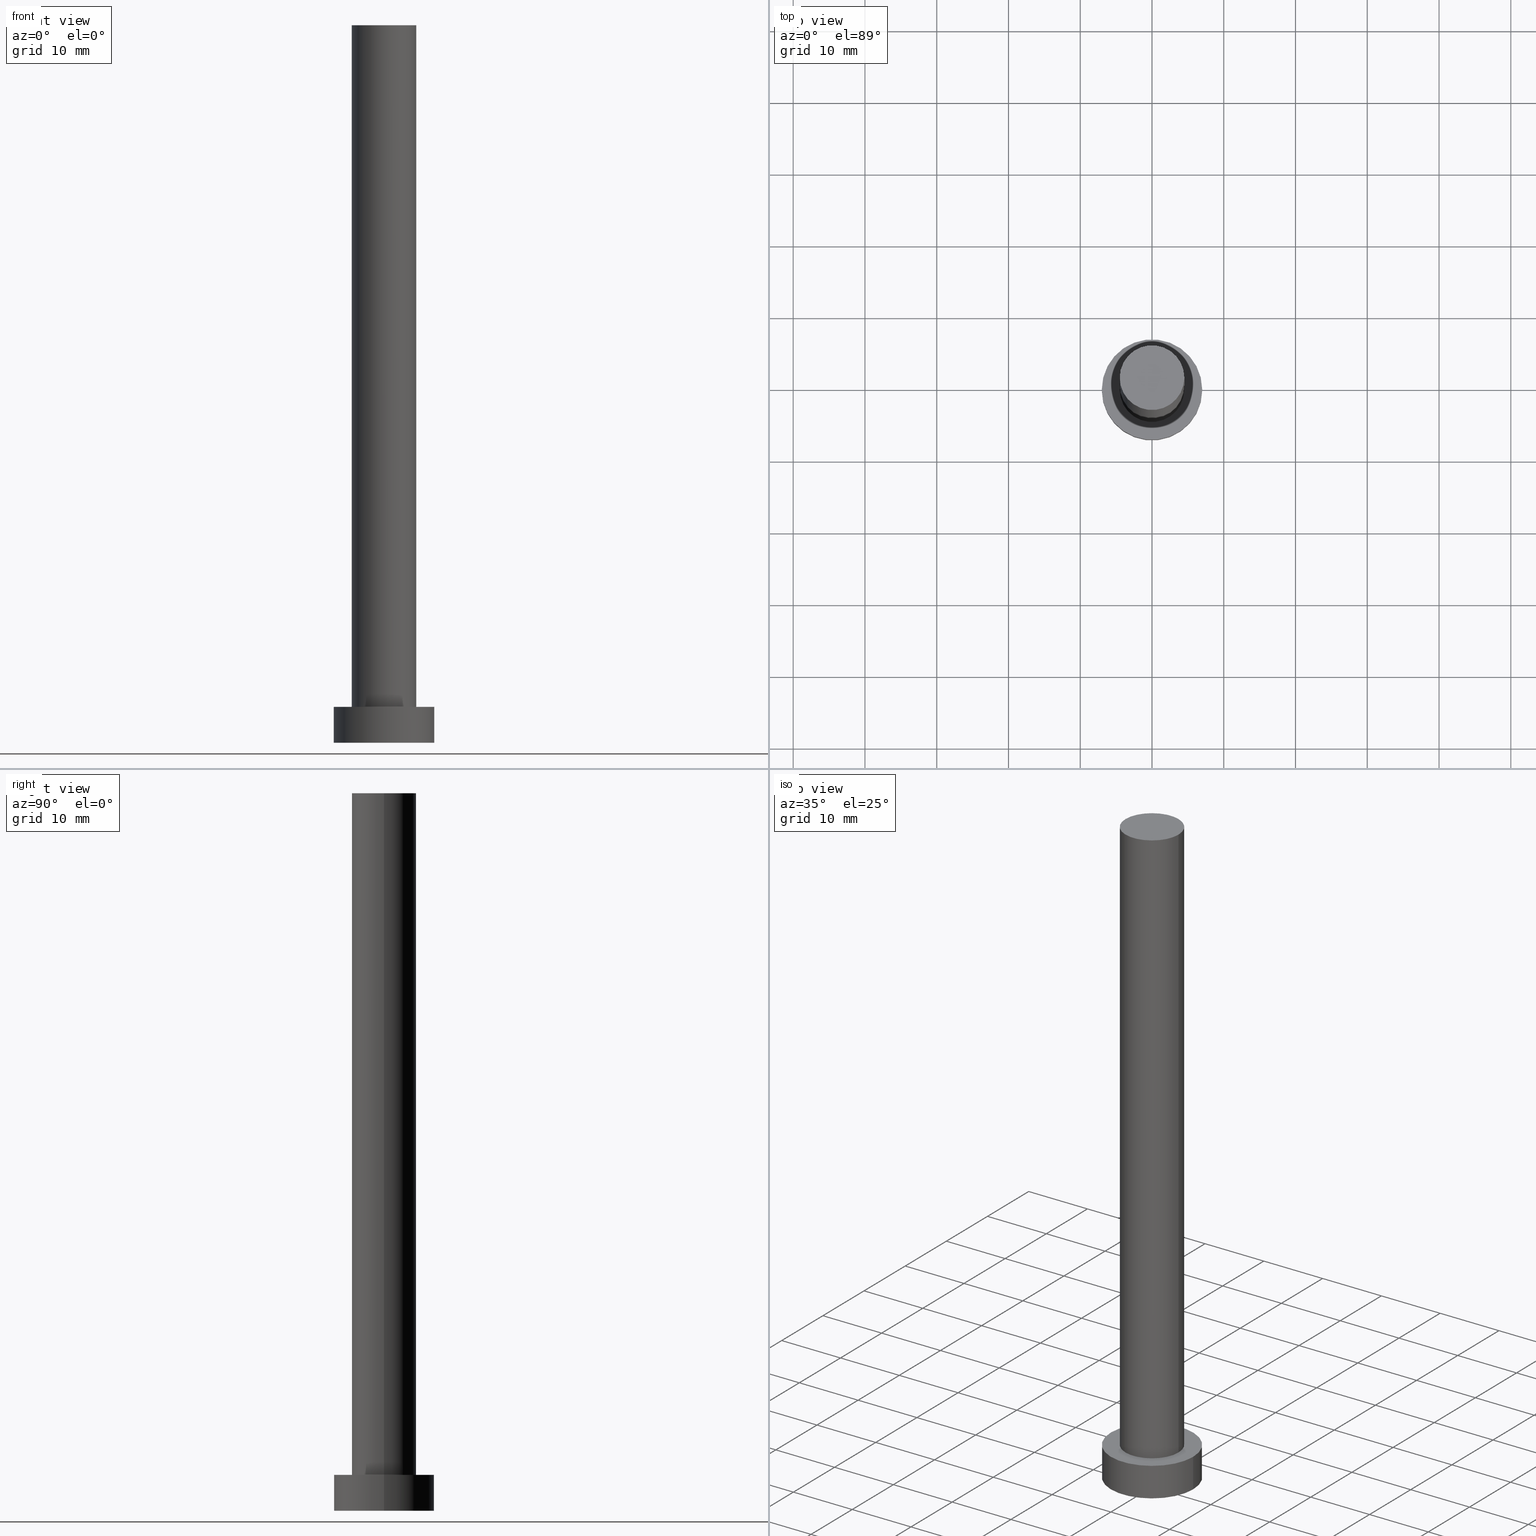
[diagram: canonical four-view strip — front | top / right | iso, engineering-drawing reading convention]
A machine part, canonical four-view strip (front | top / right | iso — engineering-drawing reading convention). The complete STEP part file that produces these views, byte-faithful:
ISO-10303-21;
HEADER;
FILE_DESCRIPTION (( 'STEP AP203' ),
    '1' );
FILE_NAME ('ac9d.STEP',
    '2023-02-13T10:51:31',
    ( '' ),
    ( '' ),
    'SwSTEP 2.0',
    'SolidWorks 2019',
    '' );
FILE_SCHEMA (( 'CONFIG_CONTROL_DESIGN' ));
ENDSEC;

DATA;
#1 = APPROVAL_STATUS ( 'not_yet_approved' ) ;
#2 = ADVANCED_FACE ( 'NONE', ( #103 ), #195, .F. ) ;
#3 = PRODUCT ( 'ac9d', 'ac9d', '', ( #224 ) ) ;
#4 = CARTESIAN_POINT ( 'NONE',  ( 4.500000000000000888, 5.510910596163089556E-16, 100.0000000000000000 ) ) ;
#5 = VECTOR ( 'NONE', #66, 1000.000000000000000 ) ;
#6 = APPROVAL_ROLE ( '' ) ;
#7 = DIRECTION ( 'NONE',  ( -1.000000000000000000, 0.000000000000000000, 0.000000000000000000 ) ) ;
#8 = APPROVAL_STATUS ( 'not_yet_approved' ) ;
#9 = ORIENTED_EDGE ( 'NONE', *, *, #163, .F. ) ;
#10 = ORIENTED_EDGE ( 'NONE', *, *, #168, .T. ) ;
#11 = EDGE_LOOP ( 'NONE', ( #41, #9, #10, #31 ) ) ;
#12 = CARTESIAN_POINT ( 'NONE',  ( 0.000000000000000000, 0.000000000000000000, 5.000000000000000000 ) ) ;
#13 = DIRECTION ( 'NONE',  ( 0.000000000000000000, 0.000000000000000000, 1.000000000000000000 ) ) ;
#14 = DIRECTION ( 'NONE',  ( 1.000000000000000000, 0.000000000000000000, 0.000000000000000000 ) ) ;
#15 = DIRECTION ( 'NONE',  ( 0.000000000000000000, 0.000000000000000000, 1.000000000000000000 ) ) ;
#16 = CARTESIAN_POINT ( 'NONE',  ( -7.000000000000000000, 0.000000000000000000, 5.000000000000000000 ) ) ;
#17 = LINE ( 'NONE', #128, #5 ) ;
#18 = PLANE ( 'NONE',  #182 ) ;
#19 = APPLICATION_PROTOCOL_DEFINITION ( 'international standard', 'config_control_design', 1994, #246 ) ;
#20 = LOCAL_TIME ( 11, 51, 31.00000000000000000, #25 ) ;
#21 = APPROVAL ( #212, 'NEUR�EN�' ) ;
#22 = AXIS2_PLACEMENT_3D ( 'NONE', #108, #216, #27 ) ;
#23 = APPROVAL_DATE_TIME ( #161, #73 ) ;
#24 = DATE_TIME_ROLE ( 'creation_date' ) ;
#25 = COORDINATED_UNIVERSAL_TIME_OFFSET ( 1, 0, .AHEAD. ) ;
#26 = ORIENTED_EDGE ( 'NONE', *, *, #229, .T. ) ;
#27 = DIRECTION ( 'NONE',  ( 1.000000000000000000, 0.000000000000000000, 0.000000000000000000 ) ) ;
#28 = APPROVAL_PERSON_ORGANIZATION ( #187, #21, #240 ) ;
#29 = ORIENTED_EDGE ( 'NONE', *, *, #136, .T. ) ;
#30 = CIRCLE ( 'NONE', #252, 7.000000000000000000 ) ;
#31 = ORIENTED_EDGE ( 'NONE', *, *, #225, .T. ) ;
#32 = DIRECTION ( 'NONE',  ( 0.000000000000000000, 0.000000000000000000, 1.000000000000000000 ) ) ;
#33 = DIRECTION ( 'NONE',  ( 0.000000000000000000, 0.000000000000000000, 1.000000000000000000 ) ) ;
#34 = CC_DESIGN_PERSON_AND_ORGANIZATION_ASSIGNMENT ( #143, #79, ( #222 ) ) ;
#35 = APPROVAL_ROLE ( '' ) ;
#36 = PERSON_AND_ORGANIZATION_ROLE ( 'creator' ) ;
#37 = ADVANCED_FACE ( 'NONE', ( #178 ), #131, .T. ) ;
#38 = AXIS2_PLACEMENT_3D ( 'NONE', #77, #184, #7 ) ;
#39 = CC_DESIGN_SECURITY_CLASSIFICATION ( #222, ( #157 ) ) ;
#40 = CARTESIAN_POINT ( 'NONE',  ( 0.000000000000000000, 0.000000000000000000, 5.000000000000000000 ) ) ;
#41 = ORIENTED_EDGE ( 'NONE', *, *, #136, .F. ) ;
#42 = CALENDAR_DATE ( 2023, 13, 2 ) ;
#43 = PRODUCT_DEFINITION ( 'NEZN�M�', '', #157, #87 ) ;
#44 = CLOSED_SHELL ( 'NONE', ( #102, #37, #109, #76, #2, #245, #122 ) ) ;
#45 = VERTEX_POINT ( 'NONE', #91 ) ;
#46 = DIRECTION ( 'NONE',  ( 1.000000000000000000, 0.000000000000000000, -0.000000000000000000 ) ) ;
#47 = EDGE_LOOP ( 'NONE', ( #130, #88, #193, #213 ) ) ;
#48 = CARTESIAN_POINT ( 'NONE',  ( 0.000000000000000000, 0.000000000000000000, 5.000000000000000000 ) ) ;
#49 = DIRECTION ( 'NONE',  ( 0.000000000000000000, 0.000000000000000000, 1.000000000000000000 ) ) ;
#50 = CARTESIAN_POINT ( 'NONE',  ( 0.000000000000000000, 0.000000000000000000, 100.0000000000000000 ) ) ;
#51 = CC_DESIGN_APPROVAL ( #73, ( #157 ) ) ;
#52 = CIRCLE ( 'NONE', #180, 7.000000000000000000 ) ;
#53 = CARTESIAN_POINT ( 'NONE',  ( 0.000000000000000000, 0.000000000000000000, 5.000000000000000000 ) ) ;
#54 = DATE_AND_TIME ( #69, #210 ) ;
#55 =( NAMED_UNIT ( * ) PLANE_ANGLE_UNIT ( ) SI_UNIT ( $, .RADIAN. ) );
#56 = EDGE_CURVE ( 'NONE', #188, #45, #111, .T. ) ;
#57 = DATE_TIME_ROLE ( 'classification_date' ) ;
#58 = EDGE_CURVE ( 'NONE', #81, #171, #71, .T. ) ;
#59 = AXIS2_PLACEMENT_3D ( 'NONE', #175, #13, #132 ) ;
#60 = ADVANCED_BREP_SHAPE_REPRESENTATION ( 'ac9d', ( #89, #173 ), #235 ) ;
#61 = CALENDAR_DATE ( 2023, 13, 2 ) ;
#62 = CC_DESIGN_PERSON_AND_ORGANIZATION_ASSIGNMENT ( #146, #96, ( #157 ) ) ;
#63 = CARTESIAN_POINT ( 'NONE',  ( 0.000000000000000000, 0.000000000000000000, 0.000000000000000000 ) ) ;
#64 = ORIENTED_EDGE ( 'NONE', *, *, #177, .T. ) ;
#65 = DIRECTION ( 'NONE',  ( 1.000000000000000000, 0.000000000000000000, 0.000000000000000000 ) ) ;
#66 = DIRECTION ( 'NONE',  ( -0.000000000000000000, -0.000000000000000000, -1.000000000000000000 ) ) ;
#67 = AXIS2_PLACEMENT_3D ( 'NONE', #48, #218, #194 ) ;
#68 = DIRECTION ( 'NONE',  ( 1.000000000000000000, 0.000000000000000000, 0.000000000000000000 ) ) ;
#69 = CALENDAR_DATE ( 2023, 13, 2 ) ;
#70 =( NAMED_UNIT ( * ) SI_UNIT ( $, .STERADIAN. ) SOLID_ANGLE_UNIT ( ) );
#71 = CIRCLE ( 'NONE', #144, 4.500000000000000888 ) ;
#72 = CARTESIAN_POINT ( 'NONE',  ( 0.000000000000000000, 0.000000000000000000, 0.000000000000000000 ) ) ;
#73 = APPROVAL ( #8, 'NEUR�EN�' ) ;
#74 = APPLICATION_CONTEXT ( 'configuration controlled 3d designs of mechanical parts and assemblies' ) ;
#75 = AXIS2_PLACEMENT_3D ( 'NONE', #12, #135, #152 ) ;
#76 = ADVANCED_FACE ( 'NONE', ( #249, #181 ), #18, .T. ) ;
#77 = CARTESIAN_POINT ( 'NONE',  ( 0.000000000000000000, 0.000000000000000000, 100.0000000000000000 ) ) ;
#78 = COORDINATED_UNIVERSAL_TIME_OFFSET ( 1, 0, .AHEAD. ) ;
#79 = PERSON_AND_ORGANIZATION_ROLE ( 'classification_officer' ) ;
#80 = VECTOR ( 'NONE', #142, 1000.000000000000000 ) ;
#81 = VERTEX_POINT ( 'NONE', #4 ) ;
#82 = EDGE_LOOP ( 'NONE', ( #151, #29, #64, #85 ) ) ;
#83 = DIRECTION ( 'NONE',  ( 0.000000000000000000, 0.000000000000000000, 1.000000000000000000 ) ) ;
#84 = AXIS2_PLACEMENT_3D ( 'NONE', #253, #33, #200 ) ;
#85 = ORIENTED_EDGE ( 'NONE', *, *, #168, .F. ) ;
#86 = CARTESIAN_POINT ( 'NONE',  ( 7.000000000000000000, 8.572527594031473190E-16, 0.000000000000000000 ) ) ;
#87 = DESIGN_CONTEXT ( 'detailed design', #74, 'design' ) ;
#88 = ORIENTED_EDGE ( 'NONE', *, *, #95, .T. ) ;
#89 = MANIFOLD_SOLID_BREP ( 'P�idat vysunut�m3', #44 ) ;
#90 = FACE_OUTER_BOUND ( 'NONE', #169, .T. ) ;
#91 = CARTESIAN_POINT ( 'NONE',  ( -4.500000000000000888, 0.000000000000000000, 5.000000000000000000 ) ) ;
#92 = DIRECTION ( 'NONE',  ( -0.000000000000000000, -0.000000000000000000, -1.000000000000000000 ) ) ;
#93 = DIRECTION ( 'NONE',  ( 1.000000000000000000, 0.000000000000000000, 0.000000000000000000 ) ) ;
#94 = PRODUCT_DEFINITION_SHAPE ( 'NONE', 'NONE',  #43 ) ;
#95 = EDGE_CURVE ( 'NONE', #81, #188, #243, .T. ) ;
#96 = PERSON_AND_ORGANIZATION_ROLE ( 'design_supplier' ) ;
#97 = CYLINDRICAL_SURFACE ( 'NONE', #38, 4.500000000000000888 ) ;
#98 = LOCAL_TIME ( 11, 51, 31.00000000000000000, #78 ) ;
#99 = CALENDAR_DATE ( 2023, 13, 2 ) ;
#100 = SECURITY_CLASSIFICATION_LEVEL ( 'unclassified' ) ;
#101 = EDGE_LOOP ( 'NONE', ( #26, #124 ) ) ;
#102 = ADVANCED_FACE ( 'NONE', ( #145 ), #97, .T. ) ;
#103 = FACE_OUTER_BOUND ( 'NONE', #148, .T. ) ;
#104 = ORIENTED_EDGE ( 'NONE', *, *, #211, .F. ) ;
#105 = LINE ( 'NONE', #214, #115 ) ;
#106 = ORIENTED_EDGE ( 'NONE', *, *, #211, .T. ) ;
#107 = ORIENTED_EDGE ( 'NONE', *, *, #56, .F. ) ;
#108 = CARTESIAN_POINT ( 'NONE',  ( 0.000000000000000000, 0.000000000000000000, 5.000000000000000000 ) ) ;
#109 = ADVANCED_FACE ( 'NONE', ( #239 ), #255, .T. ) ;
#110 = CARTESIAN_POINT ( 'NONE',  ( 0.000000000000000000, 0.000000000000000000, 0.000000000000000000 ) ) ;
#111 = CIRCLE ( 'NONE', #198, 4.500000000000000888 ) ;
#112 = PLANE ( 'NONE',  #237 ) ;
#113 = CC_DESIGN_PERSON_AND_ORGANIZATION_ASSIGNMENT ( #123, #242, ( #157 ) ) ;
#114 = DIRECTION ( 'NONE',  ( 0.000000000000000000, 0.000000000000000000, 1.000000000000000000 ) ) ;
#115 = VECTOR ( 'NONE', #201, 1000.000000000000000 ) ;
#116 = VECTOR ( 'NONE', #192, 1000.000000000000000 ) ;
#117 =( LENGTH_UNIT ( ) NAMED_UNIT ( * ) SI_UNIT ( .MILLI., .METRE. ) );
#118 = APPLICATION_PROTOCOL_DEFINITION ( 'international standard', 'config_control_design', 1994, #74 ) ;
#119 = LOCAL_TIME ( 11, 51, 31.00000000000000000, #208 ) ;
#120 = PRODUCT_RELATED_PRODUCT_CATEGORY ( 'detail', '', ( #3 ) ) ;
#121 = ORIENTED_EDGE ( 'NONE', *, *, #177, .F. ) ;
#122 = ADVANCED_FACE ( 'NONE', ( #125 ), #112, .T. ) ;
#123 = PERSON_AND_ORGANIZATION ( #155, #231 ) ;
#124 = ORIENTED_EDGE ( 'NONE', *, *, #58, .T. ) ;
#125 = FACE_OUTER_BOUND ( 'NONE', #101, .T. ) ;
#126 = EDGE_LOOP ( 'NONE', ( #147, #226 ) ) ;
#127 = ORIENTED_EDGE ( 'NONE', *, *, #225, .F. ) ;
#128 = CARTESIAN_POINT ( 'NONE',  ( 7.000000000000000000, 8.572527594031473190E-16, 5.000000000000000000 ) ) ;
#129 = EDGE_CURVE ( 'NONE', #171, #45, #105, .T. ) ;
#130 = ORIENTED_EDGE ( 'NONE', *, *, #58, .F. ) ;
#131 = CYLINDRICAL_SURFACE ( 'NONE', #133, 7.000000000000000000 ) ;
#132 = DIRECTION ( 'NONE',  ( 1.000000000000000000, 0.000000000000000000, -0.000000000000000000 ) ) ;
#133 = AXIS2_PLACEMENT_3D ( 'NONE', #53, #154, #202 ) ;
#134 = CC_DESIGN_APPROVAL ( #21, ( #222 ) ) ;
#135 = DIRECTION ( 'NONE',  ( -0.000000000000000000, -0.000000000000000000, -1.000000000000000000 ) ) ;
#136 = EDGE_CURVE ( 'NONE', #250, #186, #17, .T. ) ;
#137 = PERSON_AND_ORGANIZATION_ROLE ( 'design_owner' ) ;
#138 = CARTESIAN_POINT ( 'NONE',  ( 0.000000000000000000, 0.000000000000000000, 100.0000000000000000 ) ) ;
#139 = APPROVAL_DATE_TIME ( #54, #199 ) ;
#140 = CIRCLE ( 'NONE', #167, 4.500000000000000888 ) ;
#141 = SHAPE_DEFINITION_REPRESENTATION ( #94, #60 ) ;
#142 = DIRECTION ( 'NONE',  ( -0.000000000000000000, -0.000000000000000000, -1.000000000000000000 ) ) ;
#143 = PERSON_AND_ORGANIZATION ( #155, #231 ) ;
#144 = AXIS2_PLACEMENT_3D ( 'NONE', #138, #220, #14 ) ;
#145 = FACE_OUTER_BOUND ( 'NONE', #47, .T. ) ;
#146 = PERSON_AND_ORGANIZATION ( #155, #231 ) ;
#147 = ORIENTED_EDGE ( 'NONE', *, *, #163, .T. ) ;
#148 = EDGE_LOOP ( 'NONE', ( #127, #121 ) ) ;
#149 = CARTESIAN_POINT ( 'NONE',  ( 0.000000000000000000, 0.000000000000000000, 100.0000000000000000 ) ) ;
#150 = CIRCLE ( 'NONE', #67, 7.000000000000000000 ) ;
#151 = ORIENTED_EDGE ( 'NONE', *, *, #159, .F. ) ;
#152 = DIRECTION ( 'NONE',  ( -1.000000000000000000, 0.000000000000000000, 0.000000000000000000 ) ) ;
#153 = DIRECTION ( 'NONE',  ( 0.000000000000000000, 0.000000000000000000, 1.000000000000000000 ) ) ;
#154 = DIRECTION ( 'NONE',  ( -0.000000000000000000, -0.000000000000000000, -1.000000000000000000 ) ) ;
#155 = PERSON ( 'NEUR�EN�', 'NEUR�EN�', 'NEUR�EN�', ('NEUR�EN�'), ('NEUR�EN�'), ('NEUR�EN�') ) ;
#156 = COORDINATED_UNIVERSAL_TIME_OFFSET ( 1, 0, .AHEAD. ) ;
#157 = PRODUCT_DEFINITION_FORMATION_WITH_SPECIFIED_SOURCE ( 'LIBOVOLN�', '', #3, .NOT_KNOWN. ) ;
#158 = PERSON_AND_ORGANIZATION ( #155, #231 ) ;
#159 = EDGE_CURVE ( 'NONE', #250, #230, #150, .T. ) ;
#160 = DATE_AND_TIME ( #42, #190 ) ;
#161 = DATE_AND_TIME ( #164, #20 ) ;
#162 = COORDINATED_UNIVERSAL_TIME_OFFSET ( 1, 0, .AHEAD. ) ;
#163 = EDGE_CURVE ( 'NONE', #230, #250, #179, .T. ) ;
#164 = CALENDAR_DATE ( 2023, 13, 2 ) ;
#165 = AXIS2_PLACEMENT_3D ( 'NONE', #50, #92, #183 ) ;
#166 = ORIENTED_EDGE ( 'NONE', *, *, #95, .F. ) ;
#167 = AXIS2_PLACEMENT_3D ( 'NONE', #170, #153, #248 ) ;
#168 = EDGE_CURVE ( 'NONE', #230, #191, #172, .T. ) ;
#169 = EDGE_LOOP ( 'NONE', ( #166, #247, #215, #106 ) ) ;
#170 = CARTESIAN_POINT ( 'NONE',  ( 0.000000000000000000, 0.000000000000000000, 5.000000000000000000 ) ) ;
#171 = VERTEX_POINT ( 'NONE', #176 ) ;
#172 = LINE ( 'NONE', #251, #116 ) ;
#173 = AXIS2_PLACEMENT_3D ( 'NONE', #72, #236, #93 ) ;
#174 = DIRECTION ( 'NONE',  ( 1.000000000000000000, 0.000000000000000000, 0.000000000000000000 ) ) ;
#175 = CARTESIAN_POINT ( 'NONE',  ( 0.000000000000000000, 0.000000000000000000, 0.000000000000000000 ) ) ;
#176 = CARTESIAN_POINT ( 'NONE',  ( -4.500000000000000888, 0.000000000000000000, 100.0000000000000000 ) ) ;
#177 = EDGE_CURVE ( 'NONE', #186, #191, #30, .T. ) ;
#178 = FACE_OUTER_BOUND ( 'NONE', #82, .T. ) ;
#179 = CIRCLE ( 'NONE', #22, 7.000000000000000000 ) ;
#180 = AXIS2_PLACEMENT_3D ( 'NONE', #63, #15, #174 ) ;
#181 = FACE_OUTER_BOUND ( 'NONE', #126, .T. ) ;
#182 = AXIS2_PLACEMENT_3D ( 'NONE', #40, #83, #207 ) ;
#183 = DIRECTION ( 'NONE',  ( -1.000000000000000000, 0.000000000000000000, 0.000000000000000000 ) ) ;
#184 = DIRECTION ( 'NONE',  ( -0.000000000000000000, -0.000000000000000000, -1.000000000000000000 ) ) ;
#185 = CC_DESIGN_DATE_AND_TIME_ASSIGNMENT ( #228, #24, ( #43 ) ) ;
#186 = VERTEX_POINT ( 'NONE', #86 ) ;
#187 = PERSON_AND_ORGANIZATION ( #155, #231 ) ;
#188 = VERTEX_POINT ( 'NONE', #196 ) ;
#189 = CC_DESIGN_DATE_AND_TIME_ASSIGNMENT ( #160, #57, ( #222 ) ) ;
#190 = LOCAL_TIME ( 11, 51, 31.00000000000000000, #162 ) ;
#191 = VERTEX_POINT ( 'NONE', #254 ) ;
#192 = DIRECTION ( 'NONE',  ( -0.000000000000000000, -0.000000000000000000, -1.000000000000000000 ) ) ;
#193 = ORIENTED_EDGE ( 'NONE', *, *, #56, .T. ) ;
#194 = DIRECTION ( 'NONE',  ( 1.000000000000000000, 0.000000000000000000, 0.000000000000000000 ) ) ;
#195 = PLANE ( 'NONE',  #59 ) ;
#196 = CARTESIAN_POINT ( 'NONE',  ( 4.500000000000000888, 5.510910596163089556E-16, 5.000000000000000000 ) ) ;
#197 = UNCERTAINTY_MEASURE_WITH_UNIT (LENGTH_MEASURE( 1.000000000000000082E-05 ), #117, 'distance_accuracy_value', 'NONE');
#198 = AXIS2_PLACEMENT_3D ( 'NONE', #217, #32, #68 ) ;
#199 = APPROVAL ( #1, 'NEUR�EN�' ) ;
#200 = DIRECTION ( 'NONE',  ( 1.000000000000000000, 0.000000000000000000, 0.000000000000000000 ) ) ;
#201 = DIRECTION ( 'NONE',  ( -0.000000000000000000, -0.000000000000000000, -1.000000000000000000 ) ) ;
#202 = DIRECTION ( 'NONE',  ( -1.000000000000000000, 0.000000000000000000, 0.000000000000000000 ) ) ;
#203 = APPROVAL_PERSON_ORGANIZATION ( #158, #199, #35 ) ;
#204 = CARTESIAN_POINT ( 'NONE',  ( 7.000000000000000000, 8.572527594031473190E-16, 5.000000000000000000 ) ) ;
#205 = CIRCLE ( 'NONE', #84, 4.500000000000000888 ) ;
#206 = DATE_AND_TIME ( #99, #98 ) ;
#207 = DIRECTION ( 'NONE',  ( 1.000000000000000000, 0.000000000000000000, -0.000000000000000000 ) ) ;
#208 = COORDINATED_UNIVERSAL_TIME_OFFSET ( 1, 0, .AHEAD. ) ;
#209 = APPROVAL_PERSON_ORGANIZATION ( #238, #73, #6 ) ;
#210 = LOCAL_TIME ( 11, 51, 31.00000000000000000, #156 ) ;
#211 = EDGE_CURVE ( 'NONE', #45, #188, #140, .T. ) ;
#212 = APPROVAL_STATUS ( 'not_yet_approved' ) ;
#213 = ORIENTED_EDGE ( 'NONE', *, *, #129, .F. ) ;
#214 = CARTESIAN_POINT ( 'NONE',  ( -4.500000000000000888, 0.000000000000000000, 100.0000000000000000 ) ) ;
#215 = ORIENTED_EDGE ( 'NONE', *, *, #129, .T. ) ;
#216 = DIRECTION ( 'NONE',  ( 0.000000000000000000, 0.000000000000000000, 1.000000000000000000 ) ) ;
#217 = CARTESIAN_POINT ( 'NONE',  ( 0.000000000000000000, 0.000000000000000000, 5.000000000000000000 ) ) ;
#218 = DIRECTION ( 'NONE',  ( 0.000000000000000000, 0.000000000000000000, 1.000000000000000000 ) ) ;
#219 = CC_DESIGN_PERSON_AND_ORGANIZATION_ASSIGNMENT ( #223, #137, ( #3 ) ) ;
#220 = DIRECTION ( 'NONE',  ( 0.000000000000000000, 0.000000000000000000, 1.000000000000000000 ) ) ;
#221 = PERSON_AND_ORGANIZATION ( #155, #231 ) ;
#222 = SECURITY_CLASSIFICATION ( '', '', #100 ) ;
#223 = PERSON_AND_ORGANIZATION ( #155, #231 ) ;
#224 = MECHANICAL_CONTEXT ( 'NONE', #246, 'mechanical' ) ;
#225 = EDGE_CURVE ( 'NONE', #191, #186, #52, .T. ) ;
#226 = ORIENTED_EDGE ( 'NONE', *, *, #159, .T. ) ;
#227 = APPROVAL_DATE_TIME ( #206, #21 ) ;
#228 = DATE_AND_TIME ( #61, #119 ) ;
#229 = EDGE_CURVE ( 'NONE', #171, #81, #205, .T. ) ;
#230 = VERTEX_POINT ( 'NONE', #16 ) ;
#231 = ORGANIZATION ( 'NEUR�EN�', 'NEUR�EN�', '' ) ;
#232 = EDGE_LOOP ( 'NONE', ( #104, #107 ) ) ;
#233 = CC_DESIGN_PERSON_AND_ORGANIZATION_ASSIGNMENT ( #221, #36, ( #43 ) ) ;
#234 = CYLINDRICAL_SURFACE ( 'NONE', #165, 4.500000000000000888 ) ;
#235 =( GEOMETRIC_REPRESENTATION_CONTEXT ( 3 ) GLOBAL_UNCERTAINTY_ASSIGNED_CONTEXT ( ( #197 ) ) GLOBAL_UNIT_ASSIGNED_CONTEXT ( ( #117, #55, #70 ) ) REPRESENTATION_CONTEXT ( 'NONE', 'WORKASPACE' ) );
#236 = DIRECTION ( 'NONE',  ( 0.000000000000000000, 0.000000000000000000, 1.000000000000000000 ) ) ;
#237 = AXIS2_PLACEMENT_3D ( 'NONE', #149, #49, #46 ) ;
#238 = PERSON_AND_ORGANIZATION ( #155, #231 ) ;
#239 = FACE_OUTER_BOUND ( 'NONE', #11, .T. ) ;
#240 = APPROVAL_ROLE ( '' ) ;
#241 = CARTESIAN_POINT ( 'NONE',  ( 4.500000000000000888, 5.510910596163089556E-16, 100.0000000000000000 ) ) ;
#242 = PERSON_AND_ORGANIZATION_ROLE ( 'creator' ) ;
#243 = LINE ( 'NONE', #241, #80 ) ;
#244 = CC_DESIGN_APPROVAL ( #199, ( #43 ) ) ;
#245 = ADVANCED_FACE ( 'NONE', ( #90 ), #234, .T. ) ;
#246 = APPLICATION_CONTEXT ( 'configuration controlled 3d designs of mechanical parts and assemblies' ) ;
#247 = ORIENTED_EDGE ( 'NONE', *, *, #229, .F. ) ;
#248 = DIRECTION ( 'NONE',  ( 1.000000000000000000, 0.000000000000000000, 0.000000000000000000 ) ) ;
#249 = FACE_BOUND ( 'NONE', #232, .T. ) ;
#250 = VERTEX_POINT ( 'NONE', #204 ) ;
#251 = CARTESIAN_POINT ( 'NONE',  ( -7.000000000000000000, 0.000000000000000000, 5.000000000000000000 ) ) ;
#252 = AXIS2_PLACEMENT_3D ( 'NONE', #110, #114, #65 ) ;
#253 = CARTESIAN_POINT ( 'NONE',  ( 0.000000000000000000, 0.000000000000000000, 100.0000000000000000 ) ) ;
#254 = CARTESIAN_POINT ( 'NONE',  ( -7.000000000000000000, 0.000000000000000000, 0.000000000000000000 ) ) ;
#255 = CYLINDRICAL_SURFACE ( 'NONE', #75, 7.000000000000000000 ) ;
ENDSEC;
END-ISO-10303-21;
